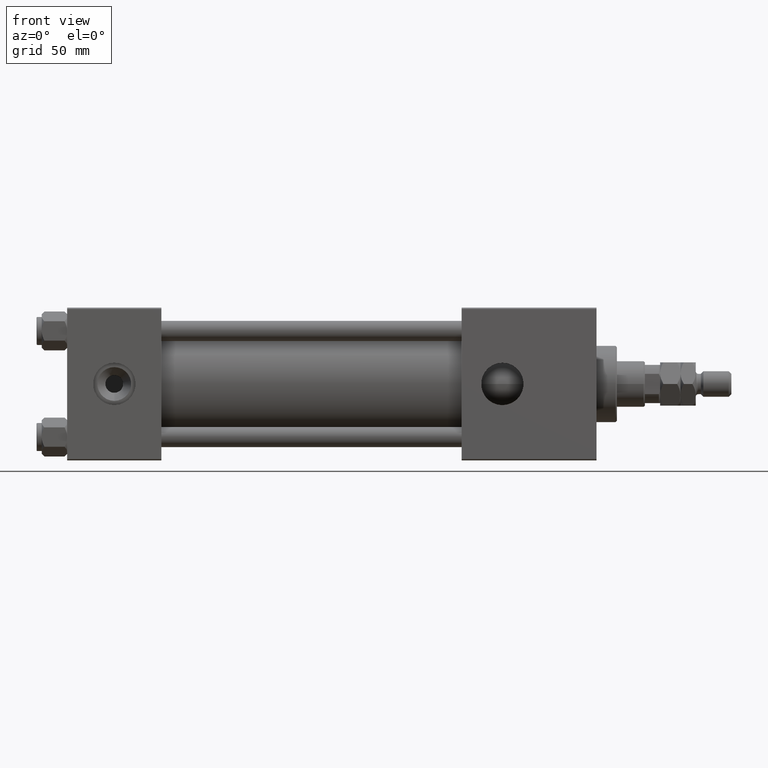
[diagram: clean part render]
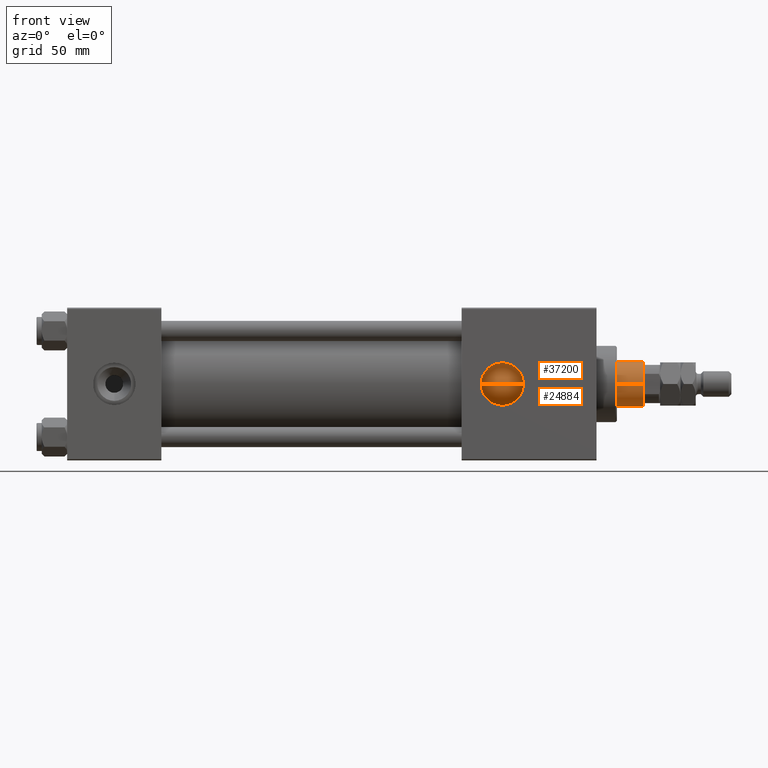
[diagram: same view with one multi-face feature highlighted, each face labeled with its STEP entity id]
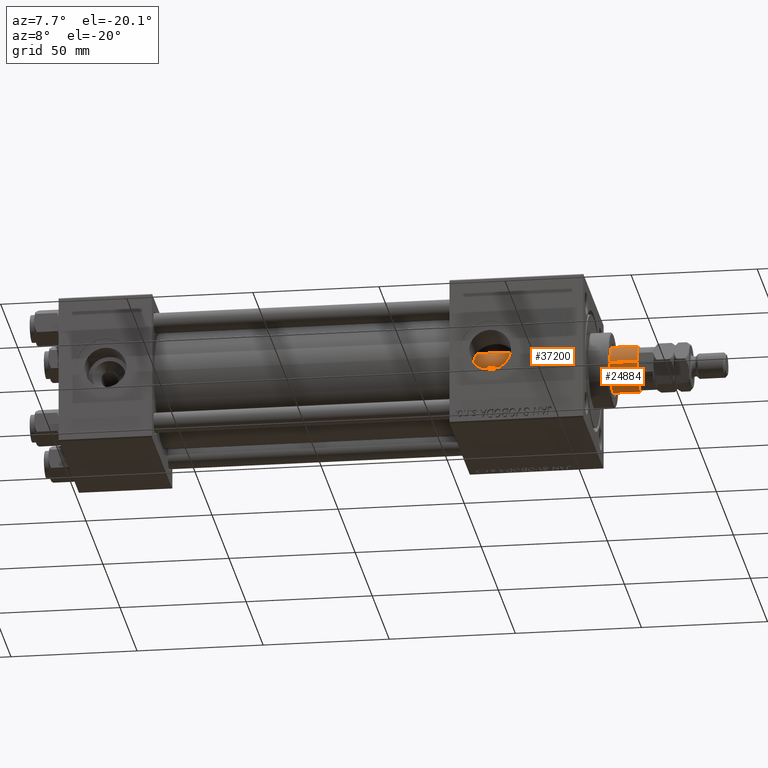
[diagram: same view with one multi-face feature highlighted, each face labeled with its STEP entity id]
A machine part, front view. The highlighted faces form ONE feature: a constant-radius fillet chain: 2 tangent blend faces with common blend radius 9 mm. The faces share edges in the B-rep.
A second angle (auxiliary view) of the same feature is appended — it is thin or edge-on in the first view.
Their STEP definitions:
[1] entity #37200 (Cylinder):
#1537 = CARTESIAN_POINT ( 'NONE',  ( 0.000000000000000000, 0.000000000000000000, 38.00000000000000000 ) ) ;
#5850 = VECTOR ( 'NONE', #6740, 1000.000000000000000 ) ;
#5892 = DIRECTION ( 'NONE',  ( 1.000000000000000000, 0.000000000000000000, 0.000000000000000000 ) ) ;
#6740 = DIRECTION ( 'NONE',  ( -0.000000000000000000, -0.000000000000000000, -1.000000000000000000 ) ) ;
#6876 = EDGE_CURVE ( 'NONE', #40932, #19373, #36791, .T. ) ;
#7199 = AXIS2_PLACEMENT_3D ( 'NONE', #1537, #13253, #5892 ) ;
#7549 = CARTESIAN_POINT ( 'NONE',  ( 9.000000000000000000, 1.102182119232617714E-15, 190.0000000000000000 ) ) ;
#10534 = VECTOR ( 'NONE', #45263, 1000.000000000000000 ) ;
#10831 = DIRECTION ( 'NONE',  ( 0.000000000000000000, 0.000000000000000000, -1.000000000000000000 ) ) ;
#13253 = DIRECTION ( 'NONE',  ( 0.000000000000000000, 0.000000000000000000, 1.000000000000000000 ) ) ;
#14921 = CARTESIAN_POINT ( 'NONE',  ( 0.000000000000000000, 0.000000000000000000, 189.5000000000000284 ) ) ;
#16508 = CARTESIAN_POINT ( 'NONE',  ( -9.000000000000000000, 0.000000000000000000, 189.5000000000000284 ) ) ;
#16809 = CARTESIAN_POINT ( 'NONE',  ( 9.000000000000000000, 1.102182119232617714E-15, 189.5000000000000284 ) ) ;
#17315 = DIRECTION ( 'NONE',  ( -1.000000000000000000, 0.000000000000000000, 0.000000000000000000 ) ) ;
#18170 = ORIENTED_EDGE ( 'NONE', *, *, #52118, .T. ) ;
#19260 = ORIENTED_EDGE ( 'NONE', *, *, #47698, .T. ) ;
#19373 = VERTEX_POINT ( 'NONE', #53674 ) ;
#23206 = CYLINDRICAL_SURFACE ( 'NONE', #52913, 9.000000000000000000 ) ;
#25761 = CARTESIAN_POINT ( 'NONE',  ( 0.000000000000000000, 0.000000000000000000, 190.0000000000000000 ) ) ;
#27397 = ORIENTED_EDGE ( 'NONE', *, *, #34483, .F. ) ;
#27600 = VERTEX_POINT ( 'NONE', #16809 ) ;
#29579 = CARTESIAN_POINT ( 'NONE',  ( -9.000000000000000000, 0.000000000000000000, 38.00000000000000000 ) ) ;
#29763 = AXIS2_PLACEMENT_3D ( 'NONE', #14921, #10831, #50702 ) ;
#33160 = VERTEX_POINT ( 'NONE', #16508 ) ;
#33555 = LINE ( 'NONE', #46071, #10534 ) ;
#33672 = FACE_OUTER_BOUND ( 'NONE', #43176, .T. ) ;
#34483 = EDGE_CURVE ( 'NONE', #27600, #19373, #39686, .T. ) ;
#36791 = CIRCLE ( 'NONE', #7199, 9.000000000000000000 ) ;
#37200 = ADVANCED_FACE ( 'NONE', ( #33672 ), #23206, .T. ) ;
#39686 = LINE ( 'NONE', #7549, #5850 ) ;
#40932 = VERTEX_POINT ( 'NONE', #29579 ) ;
#41727 = ORIENTED_EDGE ( 'NONE', *, *, #6876, .T. ) ;
#43176 = EDGE_LOOP ( 'NONE', ( #27397, #19260, #18170, #41727 ) ) ;
#45263 = DIRECTION ( 'NONE',  ( -0.000000000000000000, -0.000000000000000000, -1.000000000000000000 ) ) ;
#46071 = CARTESIAN_POINT ( 'NONE',  ( -9.000000000000000000, 0.000000000000000000, 190.0000000000000000 ) ) ;
#46723 = DIRECTION ( 'NONE',  ( -0.000000000000000000, -0.000000000000000000, -1.000000000000000000 ) ) ;
#47157 = CIRCLE ( 'NONE', #29763, 9.000000000000000000 ) ;
#47698 = EDGE_CURVE ( 'NONE', #27600, #33160, #47157, .T. ) ;
#50702 = DIRECTION ( 'NONE',  ( 1.000000000000000000, 0.000000000000000000, 0.000000000000000000 ) ) ;
#52118 = EDGE_CURVE ( 'NONE', #33160, #40932, #33555, .T. ) ;
#52913 = AXIS2_PLACEMENT_3D ( 'NONE', #25761, #46723, #17315 ) ;
#53674 = CARTESIAN_POINT ( 'NONE',  ( 9.000000000000000000, 1.102182119232617714E-15, 38.00000000000000000 ) ) ;
[2] entity #24884 (Cylinder):
#454 = CARTESIAN_POINT ( 'NONE',  ( 0.000000000000000000, 0.000000000000000000, 38.00000000000000000 ) ) ;
#459 = AXIS2_PLACEMENT_3D ( 'NONE', #51807, #6592, #47726 ) ;
#2616 = CARTESIAN_POINT ( 'NONE',  ( 0.000000000000000000, 0.000000000000000000, 189.5000000000000284 ) ) ;
#2786 = FACE_OUTER_BOUND ( 'NONE', #8937, .T. ) ;
#5072 = DIRECTION ( 'NONE',  ( 0.000000000000000000, 0.000000000000000000, 1.000000000000000000 ) ) ;
#5850 = VECTOR ( 'NONE', #6740, 1000.000000000000000 ) ;
#6545 = AXIS2_PLACEMENT_3D ( 'NONE', #454, #5072, #13497 ) ;
#6592 = DIRECTION ( 'NONE',  ( -0.000000000000000000, -0.000000000000000000, -1.000000000000000000 ) ) ;
#6740 = DIRECTION ( 'NONE',  ( -0.000000000000000000, -0.000000000000000000, -1.000000000000000000 ) ) ;
#7549 = CARTESIAN_POINT ( 'NONE',  ( 9.000000000000000000, 1.102182119232617714E-15, 190.0000000000000000 ) ) ;
#8937 = EDGE_LOOP ( 'NONE', ( #44739, #49093, #11723, #52330 ) ) ;
#10534 = VECTOR ( 'NONE', #45263, 1000.000000000000000 ) ;
#11723 = ORIENTED_EDGE ( 'NONE', *, *, #25699, .T. ) ;
#12130 = CIRCLE ( 'NONE', #33022, 9.000000000000000000 ) ;
#13497 = DIRECTION ( 'NONE',  ( 1.000000000000000000, 0.000000000000000000, 0.000000000000000000 ) ) ;
#16508 = CARTESIAN_POINT ( 'NONE',  ( -9.000000000000000000, 0.000000000000000000, 189.5000000000000284 ) ) ;
#16809 = CARTESIAN_POINT ( 'NONE',  ( 9.000000000000000000, 1.102182119232617714E-15, 189.5000000000000284 ) ) ;
#19373 = VERTEX_POINT ( 'NONE', #53674 ) ;
#24884 = ADVANCED_FACE ( 'NONE', ( #2786 ), #35473, .T. ) ;
#25699 = EDGE_CURVE ( 'NONE', #19373, #40932, #53505, .T. ) ;
#26877 = DIRECTION ( 'NONE',  ( 1.000000000000000000, 0.000000000000000000, 0.000000000000000000 ) ) ;
#27600 = VERTEX_POINT ( 'NONE', #16809 ) ;
#29579 = CARTESIAN_POINT ( 'NONE',  ( -9.000000000000000000, 0.000000000000000000, 38.00000000000000000 ) ) ;
#31496 = DIRECTION ( 'NONE',  ( 0.000000000000000000, 0.000000000000000000, -1.000000000000000000 ) ) ;
#33022 = AXIS2_PLACEMENT_3D ( 'NONE', #2616, #31496, #26877 ) ;
#33160 = VERTEX_POINT ( 'NONE', #16508 ) ;
#33555 = LINE ( 'NONE', #46071, #10534 ) ;
#34483 = EDGE_CURVE ( 'NONE', #27600, #19373, #39686, .T. ) ;
#35473 = CYLINDRICAL_SURFACE ( 'NONE', #459, 9.000000000000000000 ) ;
#38505 = EDGE_CURVE ( 'NONE', #33160, #27600, #12130, .T. ) ;
#39686 = LINE ( 'NONE', #7549, #5850 ) ;
#40932 = VERTEX_POINT ( 'NONE', #29579 ) ;
#44739 = ORIENTED_EDGE ( 'NONE', *, *, #38505, .T. ) ;
#45263 = DIRECTION ( 'NONE',  ( -0.000000000000000000, -0.000000000000000000, -1.000000000000000000 ) ) ;
#46071 = CARTESIAN_POINT ( 'NONE',  ( -9.000000000000000000, 0.000000000000000000, 190.0000000000000000 ) ) ;
#47726 = DIRECTION ( 'NONE',  ( -1.000000000000000000, 0.000000000000000000, 0.000000000000000000 ) ) ;
#49093 = ORIENTED_EDGE ( 'NONE', *, *, #34483, .T. ) ;
#51807 = CARTESIAN_POINT ( 'NONE',  ( 0.000000000000000000, 0.000000000000000000, 190.0000000000000000 ) ) ;
#52118 = EDGE_CURVE ( 'NONE', #33160, #40932, #33555, .T. ) ;
#52330 = ORIENTED_EDGE ( 'NONE', *, *, #52118, .F. ) ;
#53505 = CIRCLE ( 'NONE', #6545, 9.000000000000000000 ) ;
#53674 = CARTESIAN_POINT ( 'NONE',  ( 9.000000000000000000, 1.102182119232617714E-15, 38.00000000000000000 ) ) ;